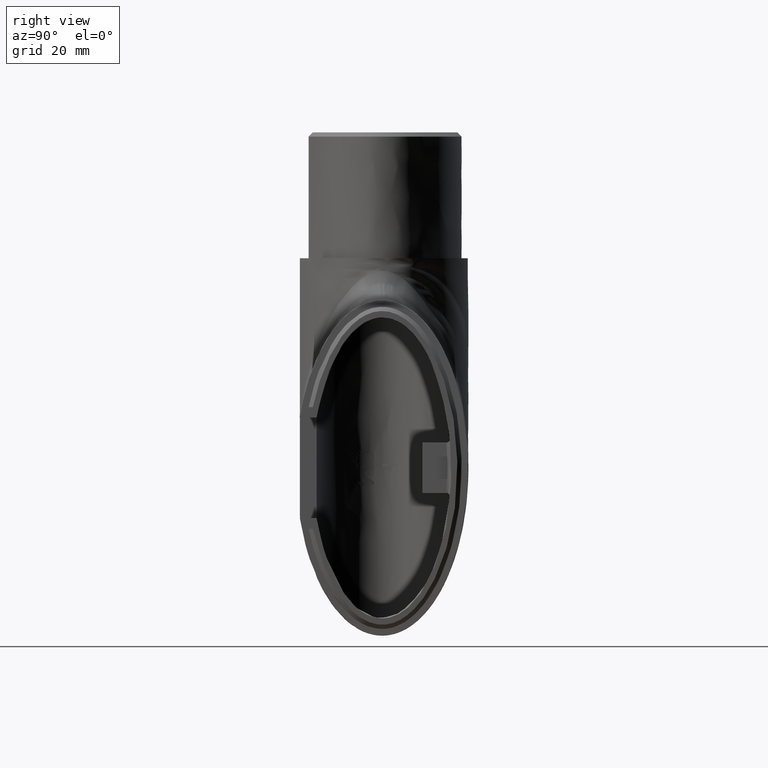
[diagram: clean part render]
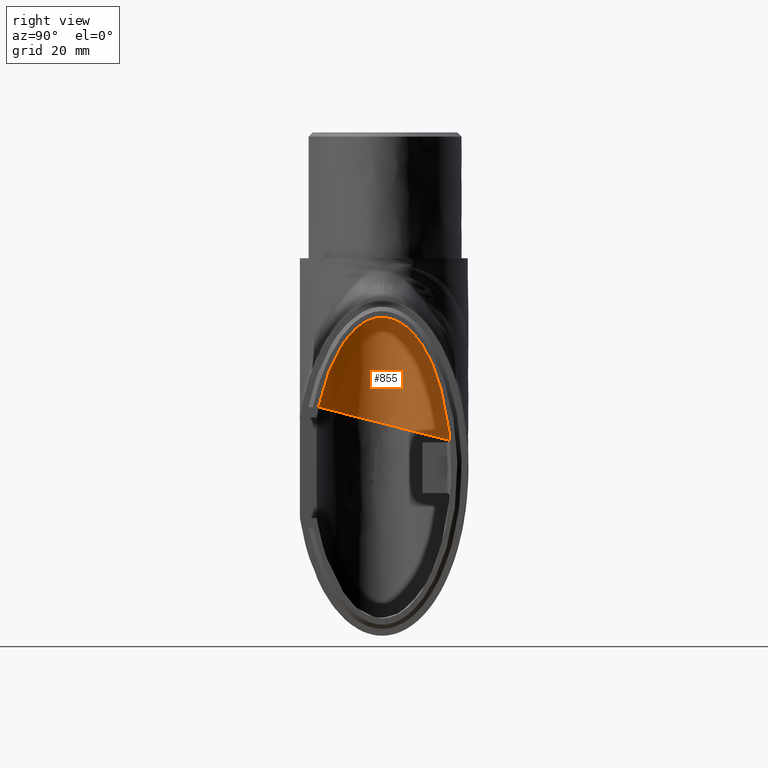
[diagram: same view with one face highlighted and labeled with its STEP entity id]
A machine part, right view. The second image highlights one B-rep face of the part: STEP entity #855.
In plain terms, the highlighted planar face has unit normal (1, 0, -0).
Its self-contained STEP definition (entity closure, byte-faithful):
#620 = ORIENTED_EDGE ( 'NONE', *, *, #27945, .T. ) ;
#855 = ADVANCED_FACE ( 'NONE', ( #28149 ), #8112, .F. ) ;
#1738 = CARTESIAN_POINT ( 'NONE',  ( 50.00000000000000000, 14.85464078966913526, 11.17434494776512643 ) ) ;
#1849 = EDGE_CURVE ( 'NONE', #16385, #26981, #12456, .T. ) ;
#2788 = CARTESIAN_POINT ( 'NONE',  ( 49.99999999999997868, 13.80579487331596056, -14.09999999999997833 ) ) ;
#3644 = CARTESIAN_POINT ( 'NONE',  ( 49.99999999999997868, 20.56608700989832172, -14.09999999999998010 ) ) ;
#5050 = CARTESIAN_POINT ( 'NONE',  ( 49.99999999999997158, 5.411376512662530835, -35.49999999999997868 ) ) ;
#6598 = CARTESIAN_POINT ( 'NONE',  ( 49.99999999999997158, 5.411376512662530835, -35.49999999999997868 ) ) ;
#7319 = ORIENTED_EDGE ( 'NONE', *, *, #25025, .F. ) ;
#8112 = PLANE ( 'NONE',  #20355 ) ;
#8453 = ORIENTED_EDGE ( 'NONE', *, *, #20934, .T. ) ;
#8662 = CARTESIAN_POINT ( 'NONE',  ( 50.00000000000002132, 37.13217401979663634, -49.99999999999181455 ) ) ;
#8993 = CARTESIAN_POINT ( 'NONE',  ( 49.99999999999999289, 37.13217401979156307, -1.150817294451234485 ) ) ;
#10684 = DIRECTION ( 'NONE',  ( 2.220446049250312588E-16, 0.000000000000000000, 1.000000000000000000 ) ) ;
#11559 = LINE ( 'NONE', #27624, #22493 ) ;
#12456 =( BOUNDED_CURVE ( )  B_SPLINE_CURVE ( 3, ( #5050, #16807, #2788, #19148 ),
 .UNSPECIFIED., .F., .F. ) 
 B_SPLINE_CURVE_WITH_KNOTS ( ( 4, 4 ),
 ( 5.128164742371810192, 6.283185307179586232 ),
 .UNSPECIFIED. ) 
 CURVE ( )  GEOMETRIC_REPRESENTATION_ITEM ( )  RATIONAL_B_SPLINE_CURVE ( ( 1.000000000000000000, 0.8918829872383710056, 0.8918829872383710056, 1.000000000000000000 ) ) 
 REPRESENTATION_ITEM ( '' )  );
#12686 =( BOUNDED_CURVE ( )  B_SPLINE_CURVE ( 3, ( #3644, #17962, #15611, #8662 ),
 .UNSPECIFIED., .F., .F. ) 
 B_SPLINE_CURVE_WITH_KNOTS ( ( 4, 4 ),
 ( 0.000000000000000000, 1.570796326794668962 ),
 .UNSPECIFIED. ) 
 CURVE ( )  GEOMETRIC_REPRESENTATION_ITEM ( )  RATIONAL_B_SPLINE_CURVE ( ( 1.000000000000000000, 0.8047378541244185612, 0.8047378541244185612, 1.000000000000000000 ) ) 
 REPRESENTATION_ITEM ( '' )  );
#14890 = CARTESIAN_POINT ( 'NONE',  ( 49.99999999999997868, 20.56608700989832172, -14.09999999999998010 ) ) ;
#15611 = CARTESIAN_POINT ( 'NONE',  ( 49.99999999999998579, 37.13217401979442656, -28.97026688918971615 ) ) ;
#15847 = CARTESIAN_POINT ( 'NONE',  ( 50.00000000000000711, 5.403184023785224888, -35.49999999999996447 ) ) ;
#16385 = VERTEX_POINT ( 'NONE', #6598 ) ;
#16807 = CARTESIAN_POINT ( 'NONE',  ( 49.99999999999997158, 8.141856623538417992, -22.09805965065102384 ) ) ;
#17321 = CARTESIAN_POINT ( 'NONE',  ( 50.00000000000002132, 37.13217401979663634, -49.99999999999181455 ) ) ;
#17962 = CARTESIAN_POINT ( 'NONE',  ( 49.99999999999998579, 30.27027610484225661, -14.09999999999998010 ) ) ;
#19148 = CARTESIAN_POINT ( 'NONE',  ( 49.99999999999997868, 20.56608700989832172, -14.09999999999998010 ) ) ;
#20355 = AXIS2_PLACEMENT_3D ( 'NONE', #24677, #29395, #10684 ) ;
#20667 = DIRECTION ( 'NONE',  ( -1.650752244590002631E-29, -1.000000000000000000, -7.434327193616546984E-14 ) ) ;
#20934 = EDGE_CURVE ( 'NONE', #24345, #21110, #21298, .T. ) ;
#21110 = VERTEX_POINT ( 'NONE', #17321 ) ;
#21298 =( BOUNDED_CURVE ( )  B_SPLINE_CURVE ( 3, ( #15847, #1738, #8993, #27506 ),
 .UNSPECIFIED., .F., .F. ) 
 B_SPLINE_CURVE_WITH_KNOTS ( ( 4, 4 ),
 ( 0.5403562965053404499, 0.7504532469794215066 ),
 .UNSPECIFIED. ) 
 CURVE ( )  GEOMETRIC_REPRESENTATION_ITEM ( )  RATIONAL_B_SPLINE_CURVE ( ( 0.8231920784862980511, 0.1822874899274053440, 0.08875711258508367507, 0.08875711258507329449 ) ) 
 REPRESENTATION_ITEM ( '' )  );
#22493 = VECTOR ( 'NONE', #20667, 1000.000000000000000 ) ;
#22935 = EDGE_LOOP ( 'NONE', ( #8453, #7319, #28419, #620 ) ) ;
#24345 = VERTEX_POINT ( 'NONE', #27342 ) ;
#24677 = CARTESIAN_POINT ( 'NONE',  ( 49.99999999999997158, 0.000000000000000000, -49.99999999999998579 ) ) ;
#25025 = EDGE_CURVE ( 'NONE', #26981, #21110, #12686, .T. ) ;
#26981 = VERTEX_POINT ( 'NONE', #14890 ) ;
#27342 = CARTESIAN_POINT ( 'NONE',  ( 50.00000000000000711, 5.403184023785225776, -35.49999999999996447 ) ) ;
#27506 = CARTESIAN_POINT ( 'NONE',  ( 50.00000000000002132, 37.13217401979663634, -49.99999999999182165 ) ) ;
#27624 = CARTESIAN_POINT ( 'NONE',  ( 49.99999999999997158, -1.077977443074370503E-12, -35.50000000000037659 ) ) ;
#27945 = EDGE_CURVE ( 'NONE', #16385, #24345, #11559, .T. ) ;
#28149 = FACE_OUTER_BOUND ( 'NONE', #22935, .T. ) ;
#28419 = ORIENTED_EDGE ( 'NONE', *, *, #1849, .F. ) ;
#29395 = DIRECTION ( 'NONE',  ( 1.000000000000000000, 0.000000000000000000, -2.220446049250312588E-16 ) ) ;